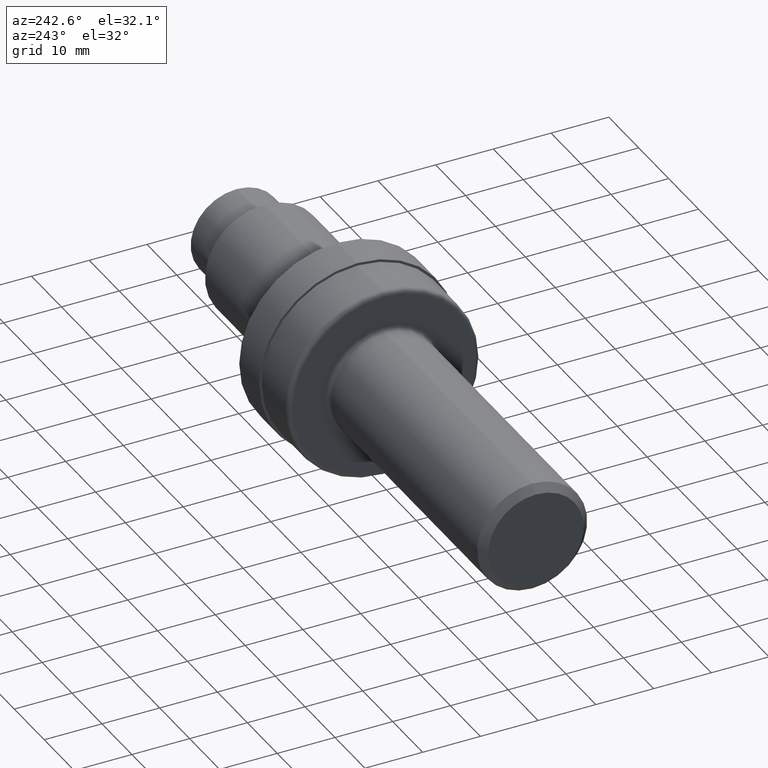
[diagram: clean part render]
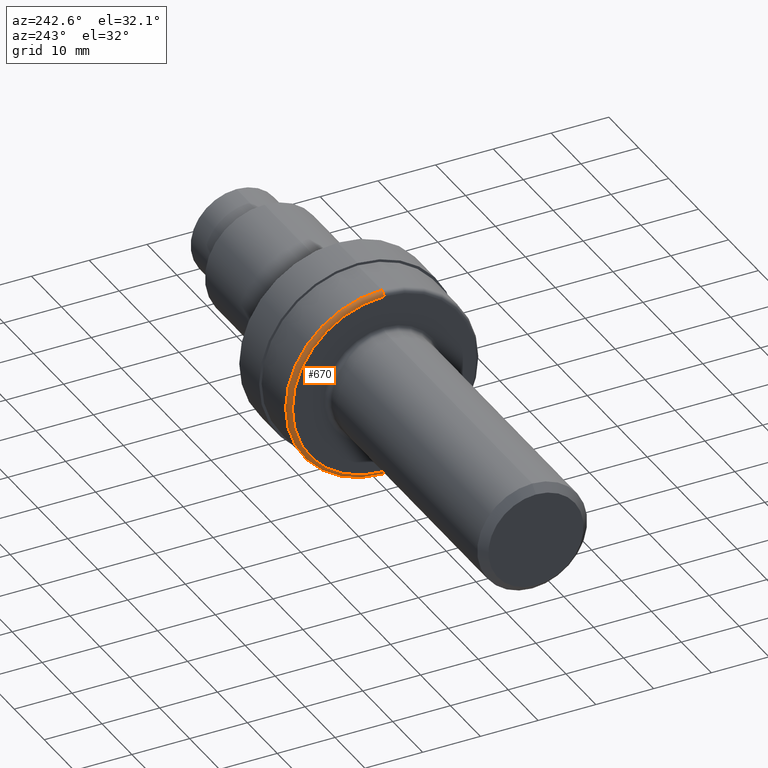
[diagram: same view with one face highlighted and labeled with its STEP entity id]
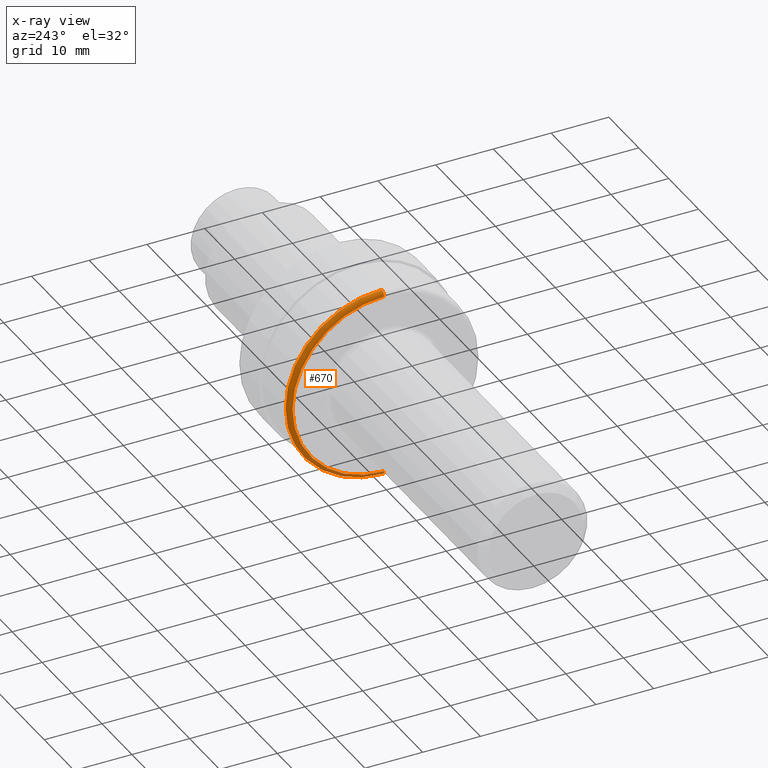
[diagram: x-ray of the same camera — body ghosted, the highlighted face saturated]
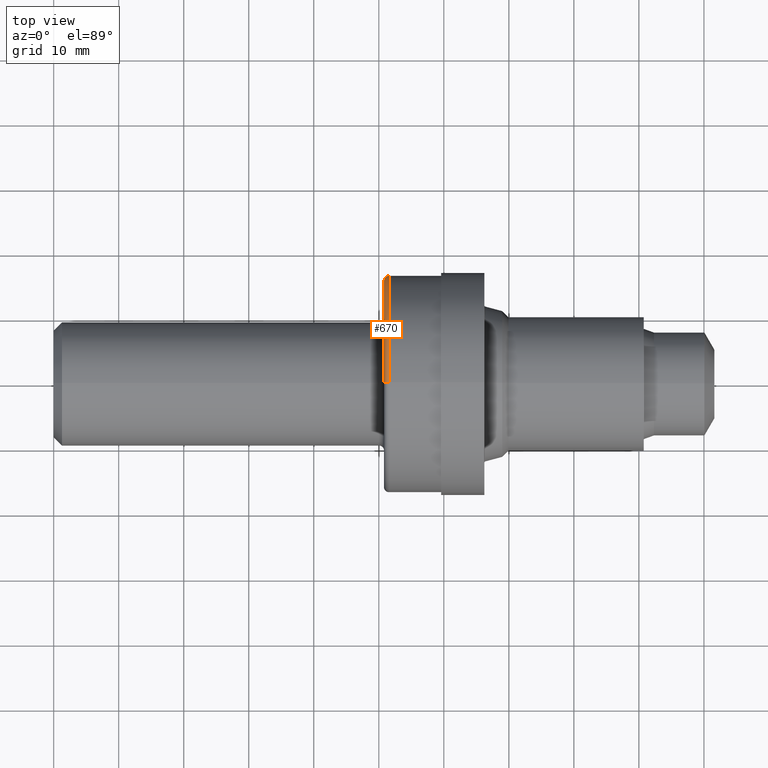
[diagram: same view with one face highlighted and labeled with its STEP entity id]
A machine part, auxiliary view. The second image highlights one B-rep face of the part: STEP entity #670.
The next image is the same camera in x-ray: the body ghosted, the highlighted face saturated — about 0% of this face is hidden behind the body in this view.
A second angle (top view) of the same face is appended — the face is thin or edge-on in the first view.
In plain terms, the highlighted toroidal blend (fillet) surface has major radius 15.875 mm and minor (blend) radius 0.762 mm.
Its self-contained STEP definition (entity closure, byte-faithful):
#3 = TOROIDAL_SURFACE ( 'NONE', #757, 0.6250000000000000000, 0.02999999999999995379 ) ;
#15 = ORIENTED_EDGE ( 'NONE', *, *, #789, .F. ) ;
#88 = CIRCLE ( 'NONE', #292, 0.6250000000000000000 ) ;
#90 = ORIENTED_EDGE ( 'NONE', *, *, #652, .T. ) ;
#125 = CARTESIAN_POINT ( 'NONE',  ( 2.029999999999999805, 8.021436534415163002E-17, -0.6550000000000000266 ) ) ;
#127 = EDGE_CURVE ( 'NONE', #730, #433, #191, .T. ) ;
#132 = DIRECTION ( 'NONE',  ( -1.000000000000000000, -0.0000000000000000000, -0.0000000000000000000 ) ) ;
#168 = DIRECTION ( 'NONE',  ( -1.000000000000000000, -0.0000000000000000000, -0.0000000000000000000 ) ) ;
#174 = CARTESIAN_POINT ( 'NONE',  ( 2.000000000000000000, 7.837739514543061660E-17, -0.6250000000000000000 ) ) ;
#177 = DIRECTION ( 'NONE',  ( 0.0000000000000000000, 0.0000000000000000000, 1.000000000000000000 ) ) ;
#178 = FACE_OUTER_BOUND ( 'NONE', #282, .T. ) ;
#191 = CIRCLE ( 'NONE', #674, 0.6550000000000000266 ) ;
#201 = DIRECTION ( 'NONE',  ( -0.0000000000000000000, 1.000000000000000000, 1.224646799147353207E-16 ) ) ;
#203 = CIRCLE ( 'NONE', #845, 0.02999999999999995379 ) ;
#249 = DIRECTION ( 'NONE',  ( 0.0000000000000000000, -1.000000000000000000, 0.0000000000000000000 ) ) ;
#275 = CARTESIAN_POINT ( 'NONE',  ( 2.029999999999999805, 7.654042494670957853E-17, -0.6250000000000000000 ) ) ;
#282 = EDGE_LOOP ( 'NONE', ( #635, #90, #15, #517 ) ) ;
#289 = VERTEX_POINT ( 'NONE', #323 ) ;
#292 = AXIS2_PLACEMENT_3D ( 'NONE', #574, #168, #177 ) ;
#303 = CARTESIAN_POINT ( 'NONE',  ( 2.029999999999999805, 0.0000000000000000000, 0.0000000000000000000 ) ) ;
#323 = CARTESIAN_POINT ( 'NONE',  ( 2.000000000000000000, 0.0000000000000000000, 0.6250000000000000000 ) ) ;
#339 = CARTESIAN_POINT ( 'NONE',  ( 2.029999999999999805, 0.0000000000000000000, 0.0000000000000000000 ) ) ;
#355 = CIRCLE ( 'NONE', #853, 0.02999999999999995379 ) ;
#379 = DIRECTION ( 'NONE',  ( 0.0000000000000000000, 0.0000000000000000000, 1.000000000000000000 ) ) ;
#433 = VERTEX_POINT ( 'NONE', #125 ) ;
#500 = EDGE_CURVE ( 'NONE', #730, #289, #355, .T. ) ;
#517 = ORIENTED_EDGE ( 'NONE', *, *, #500, .F. ) ;
#574 = CARTESIAN_POINT ( 'NONE',  ( 2.000000000000000000, 0.0000000000000000000, 0.0000000000000000000 ) ) ;
#635 = ORIENTED_EDGE ( 'NONE', *, *, #127, .T. ) ;
#647 = DIRECTION ( 'NONE',  ( 0.0000000000000000000, 0.0000000000000000000, -1.000000000000000000 ) ) ;
#652 = EDGE_CURVE ( 'NONE', #433, #852, #203, .T. ) ;
#658 = CARTESIAN_POINT ( 'NONE',  ( 2.029999999999999805, 0.0000000000000000000, 0.6550000000000000266 ) ) ;
#668 = DIRECTION ( 'NONE',  ( 0.0000000000000000000, -1.224646799147354933E-16, 1.000000000000000000 ) ) ;
#670 = ADVANCED_FACE ( 'NONE', ( #178 ), #3, .T. ) ;
#674 = AXIS2_PLACEMENT_3D ( 'NONE', #303, #770, #379 ) ;
#712 = CARTESIAN_POINT ( 'NONE',  ( 2.029999999999999805, 0.0000000000000000000, 0.6250000000000000000 ) ) ;
#730 = VERTEX_POINT ( 'NONE', #658 ) ;
#757 = AXIS2_PLACEMENT_3D ( 'NONE', #339, #132, #803 ) ;
#770 = DIRECTION ( 'NONE',  ( -1.000000000000000000, -0.0000000000000000000, -0.0000000000000000000 ) ) ;
#789 = EDGE_CURVE ( 'NONE', #289, #852, #88, .T. ) ;
#803 = DIRECTION ( 'NONE',  ( 0.0000000000000000000, 0.0000000000000000000, 1.000000000000000000 ) ) ;
#845 = AXIS2_PLACEMENT_3D ( 'NONE', #275, #201, #668 ) ;
#852 = VERTEX_POINT ( 'NONE', #174 ) ;
#853 = AXIS2_PLACEMENT_3D ( 'NONE', #712, #249, #647 ) ;